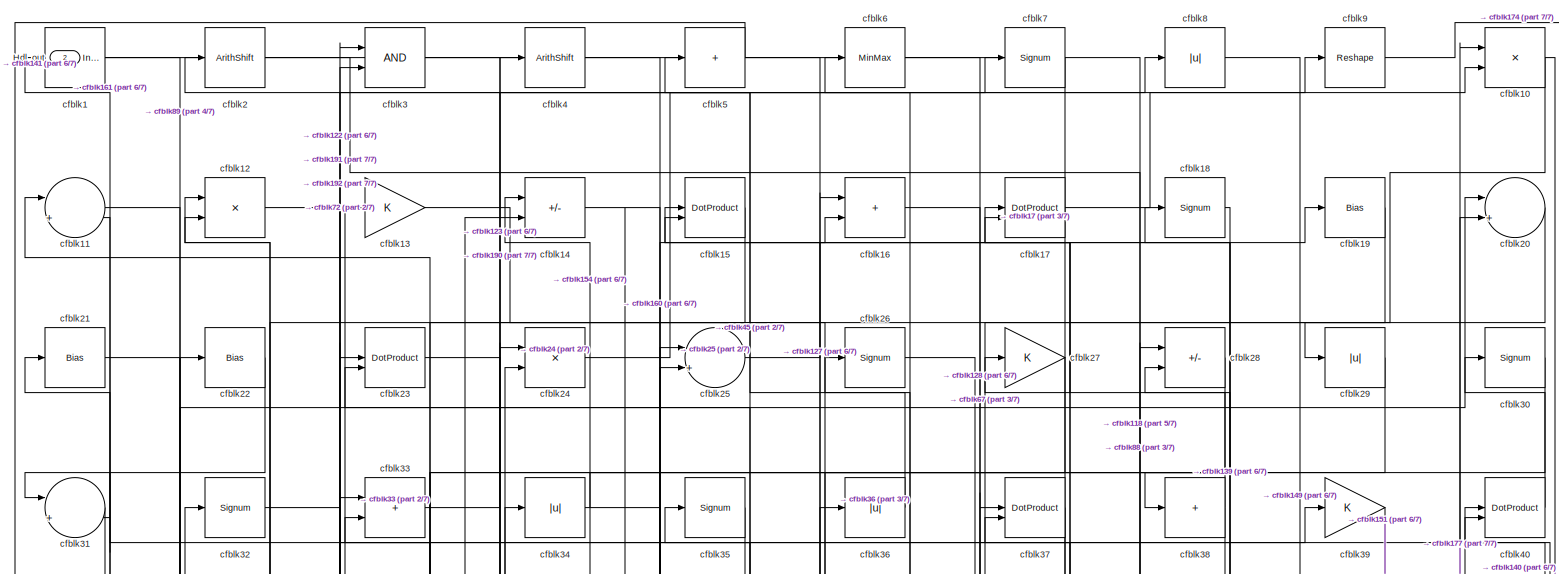
[diagram: root canvas - part 1/7, full width, top band]
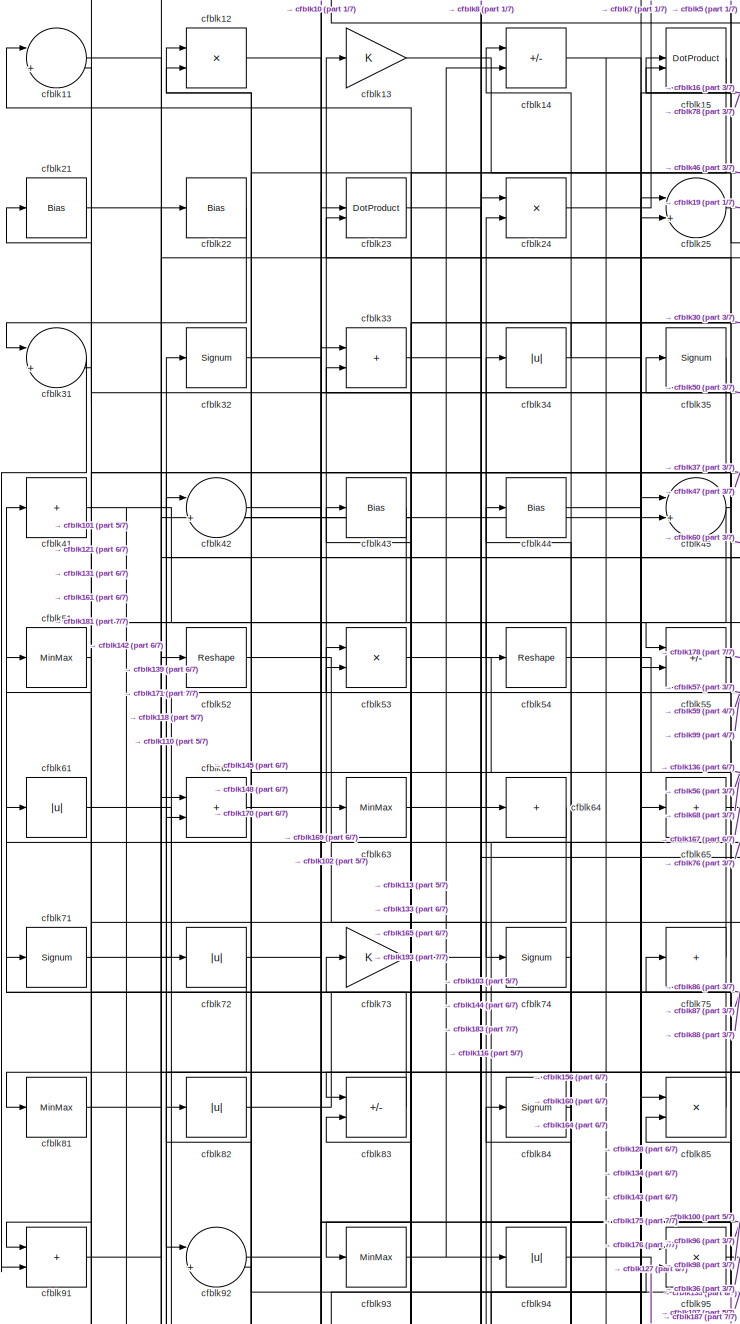
[diagram: root canvas - part 2/7, top left region]
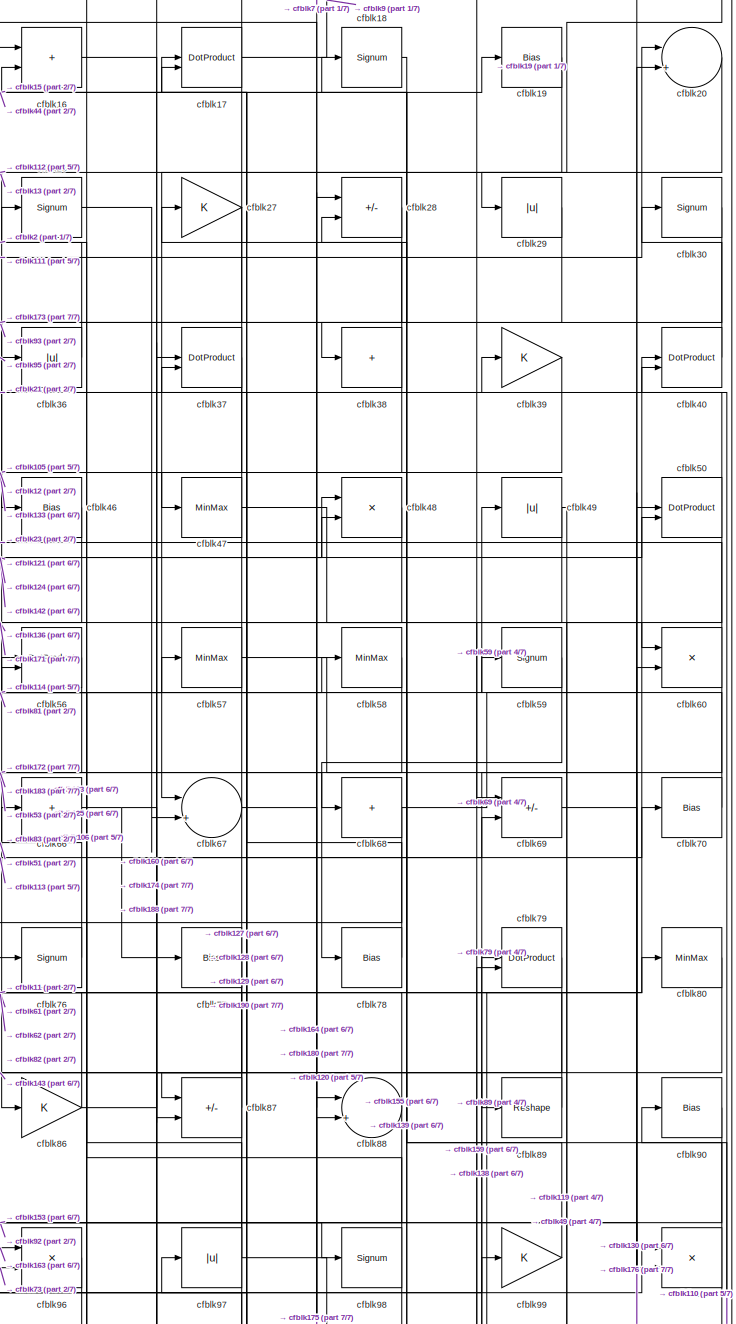
[diagram: root canvas - part 3/7, top right region]
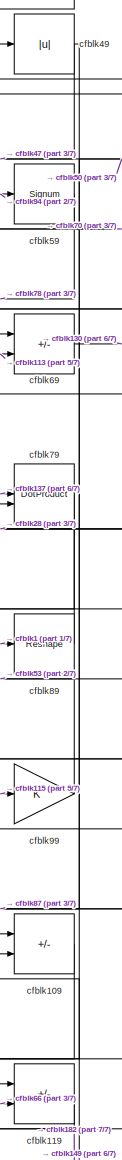
[diagram: root canvas - part 4/7, middle right region]
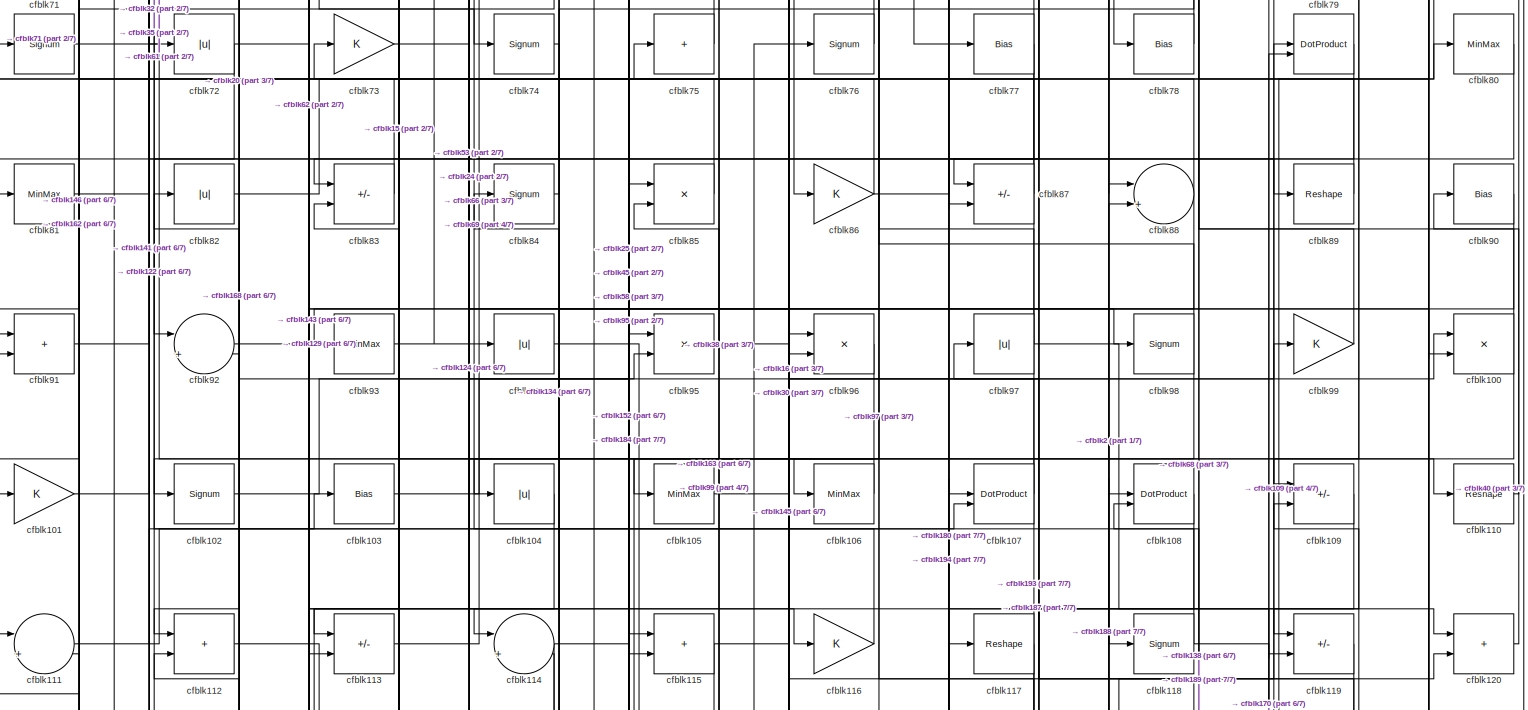
[diagram: root canvas - part 5/7, full width, middle band]
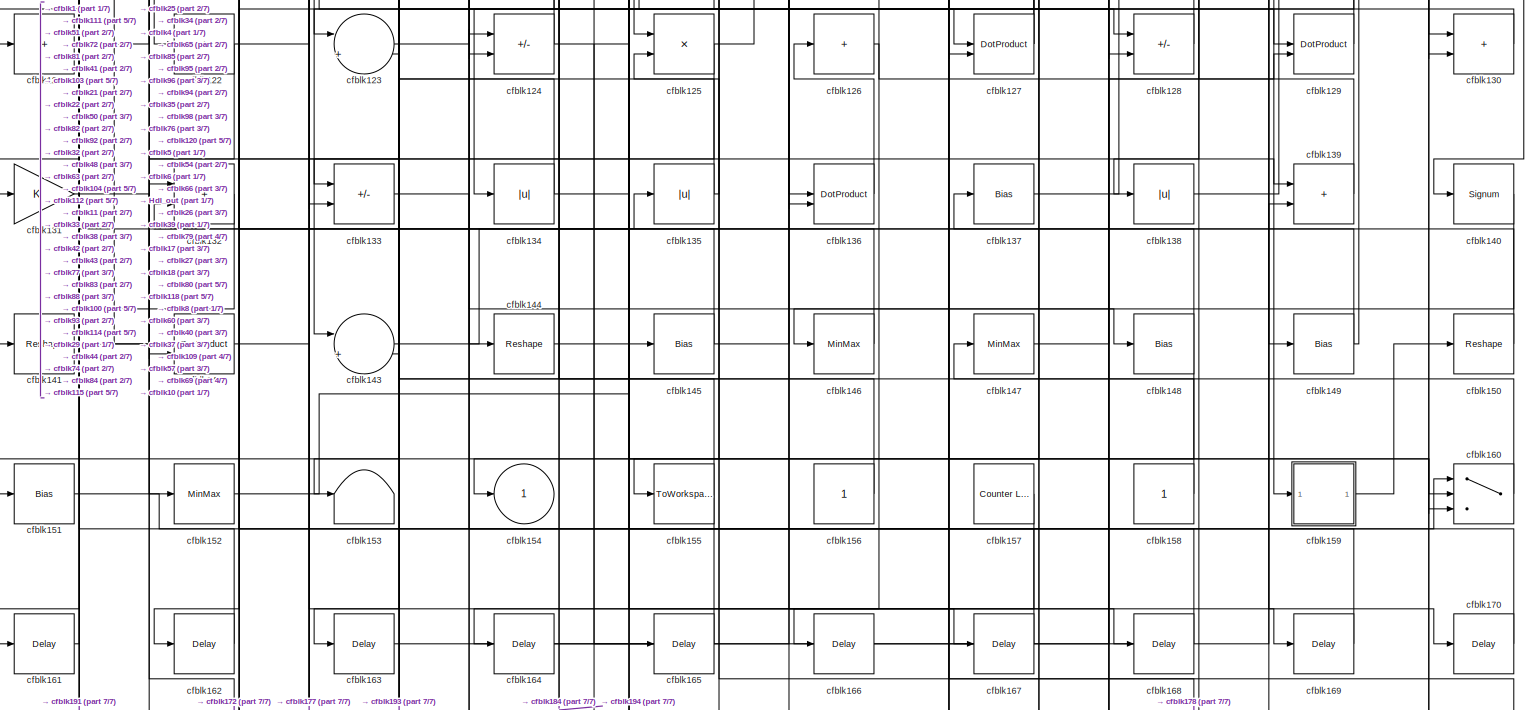
[diagram: root canvas - part 6/7, full width, bottom band]
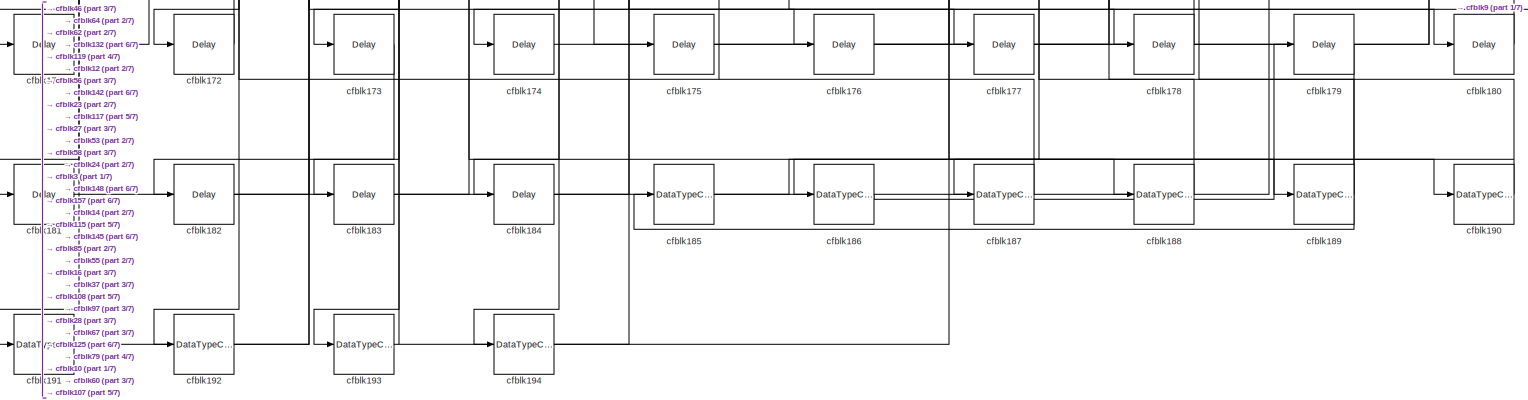
[diagram: root canvas - part 7/7, full width, bottom band]
MODEL slx_fb76f92d5b89
KIND model
CONFIG AbsTol = auto
CONFIG EnableMultiTasking = off
CONFIG FixedStep = auto
CONFIG MaxStep = auto
CONFIG MinStep = auto
CONFIG RelTol = 1e-3
CONFIG SampleTimeConstraint = Unconstrained
CONFIG SolverName = VariableStepAuto
CONFIG StartTime = 0.0
CONFIG StopTime = 10.0
BLOCK [Outport] Hdl_out
  OutDataTypeStr = uint8
  Port = 2
BLOCK [Reference] cfblk1  REF=simulink/Logic and Bit
Operations/Detect
Increase
  LibrarySourceBlock = hdlsllib/Logic and Bit\nOperations/Detect\nIncrease
  SourceBlock = simulink/Logic and Bit\nOperations/Detect\nIncrease
  SourceType = Detect Increase
BLOCK [Product] cfblk10
  Inputs = */
  OutDataTypeStr = uint8
  RndMeth = Zero
  SaturateOnIntegerOverflow = on
BLOCK [Product] cfblk100
  Inputs = */
  OutDataTypeStr = uint8
  RndMeth = Zero
  SaturateOnIntegerOverflow = on
BLOCK [Gain] cfblk101
  OutDataTypeStr = uint8
BLOCK [Signum] cfblk102
BLOCK [Bias] cfblk103
  Bias = 0.0
  SaturateOnIntegerOverflow = off
BLOCK [Abs] cfblk104
  OutDataTypeStr = uint8
  SaturateOnIntegerOverflow = off
BLOCK [MinMax] cfblk105
  OutDataTypeStr = uint8
BLOCK [MinMax] cfblk106
  OutDataTypeStr = uint8
BLOCK [DotProduct] cfblk107
  OutDataTypeStr = uint8
BLOCK [DotProduct] cfblk108
  OutDataTypeStr = uint8
BLOCK [Sum] cfblk109
  IconShape = rectangular
  Inputs = +-
  OutDataTypeStr = uint8
BLOCK [Sum] cfblk11
  Inputs = |++
  OutDataTypeStr = uint8
BLOCK [Reshape] cfblk110
BLOCK [Sum] cfblk111
  Inputs = |++
  OutDataTypeStr = uint8
BLOCK [Sum] cfblk112
  IconShape = rectangular
  OutDataTypeStr = uint8
BLOCK [Sum] cfblk113
  IconShape = rectangular
  Inputs = +-
  OutDataTypeStr = uint8
BLOCK [Sum] cfblk114
  Inputs = |++
  OutDataTypeStr = uint8
BLOCK [Sum] cfblk115
  IconShape = rectangular
  OutDataTypeStr = uint8
BLOCK [Gain] cfblk116
  OutDataTypeStr = uint8
BLOCK [Reshape] cfblk117
BLOCK [Signum] cfblk118
BLOCK [Sum] cfblk119
  IconShape = rectangular
  Inputs = +-
  OutDataTypeStr = uint8
BLOCK [Product] cfblk12
  Inputs = */
  OutDataTypeStr = uint8
  RndMeth = Zero
  SaturateOnIntegerOverflow = on
BLOCK [Sum] cfblk120
  IconShape = rectangular
  OutDataTypeStr = uint8
BLOCK [Sum] cfblk121
  IconShape = rectangular
  Inputs = +
  OutDataTypeStr = uint8
BLOCK [Sum] cfblk122
  IconShape = rectangular
  Inputs = +
  OutDataTypeStr = uint8
BLOCK [Sum] cfblk123
  Inputs = |++
  OutDataTypeStr = uint8
BLOCK [Sum] cfblk124
  IconShape = rectangular
  Inputs = +-
  OutDataTypeStr = uint8
BLOCK [Product] cfblk125
  Inputs = */
  OutDataTypeStr = uint8
  RndMeth = Zero
  SaturateOnIntegerOverflow = on
BLOCK [Sum] cfblk126
  IconShape = rectangular
  Inputs = +
  OutDataTypeStr = uint8
BLOCK [DotProduct] cfblk127
  OutDataTypeStr = uint8
BLOCK [Sum] cfblk128
  IconShape = rectangular
  Inputs = +-
  OutDataTypeStr = uint8
BLOCK [DotProduct] cfblk129
  OutDataTypeStr = uint8
BLOCK [Gain] cfblk13
  OutDataTypeStr = uint8
BLOCK [Sum] cfblk130
  IconShape = rectangular
  OutDataTypeStr = uint8
BLOCK [Gain] cfblk131
  OutDataTypeStr = uint8
BLOCK [Sum] cfblk132
  IconShape = rectangular
  OutDataTypeStr = uint8
BLOCK [Sum] cfblk133
  IconShape = rectangular
  Inputs = +-
  OutDataTypeStr = uint8
BLOCK [Abs] cfblk134
  OutDataTypeStr = uint8
  SaturateOnIntegerOverflow = off
BLOCK [Abs] cfblk135
  OutDataTypeStr = uint8
  SaturateOnIntegerOverflow = off
BLOCK [DotProduct] cfblk136
  OutDataTypeStr = uint8
BLOCK [Bias] cfblk137
  Bias = 0.0
  SaturateOnIntegerOverflow = off
BLOCK [Abs] cfblk138
  OutDataTypeStr = uint8
  SaturateOnIntegerOverflow = off
BLOCK [Sum] cfblk139
  IconShape = rectangular
  OutDataTypeStr = uint8
BLOCK [Sum] cfblk14
  IconShape = rectangular
  Inputs = +-
  OutDataTypeStr = uint8
BLOCK [Signum] cfblk140
BLOCK [Reshape] cfblk141
BLOCK [DotProduct] cfblk142
  OutDataTypeStr = uint8
BLOCK [Sum] cfblk143
  Inputs = |++
  OutDataTypeStr = uint8
BLOCK [Reshape] cfblk144
BLOCK [Bias] cfblk145
  Bias = 0.0
  SaturateOnIntegerOverflow = off
BLOCK [MinMax] cfblk146
  OutDataTypeStr = uint8
BLOCK [MinMax] cfblk147
  OutDataTypeStr = uint8
BLOCK [Bias] cfblk148
  Bias = 0.0
  SaturateOnIntegerOverflow = off
BLOCK [Bias] cfblk149
  Bias = 0.0
  SaturateOnIntegerOverflow = off
BLOCK [DotProduct] cfblk15
  OutDataTypeStr = uint8
BLOCK [Reshape] cfblk150
BLOCK [Bias] cfblk151
  Bias = 0.0
  SaturateOnIntegerOverflow = off
BLOCK [MinMax] cfblk152
  OutDataTypeStr = uint8
BLOCK [Terminator] cfblk153
BLOCK [Outport] cfblk154
  OutDataTypeStr = uint8
  VectorParamsAs1DForOutWhenUnconnected = off
BLOCK [ToWorkspace] cfblk155
  MaxDataPoints = inf
  SampleTime = -1
  SaveFormat = Timeseries
  VariableName = simout
BLOCK [Constant] cfblk156
  OutDataTypeStr = uint8
  SampleTime = -1
BLOCK [Reference] cfblk157  REF=hdlsllib/Sources/Counter
Limited
  SourceBlock = hdlsllib/Sources/Counter\nLimited
  SourceType = Counter Limited
BLOCK [Constant] cfblk158
  OutDataTypeStr = uint8
  SampleTime = -1
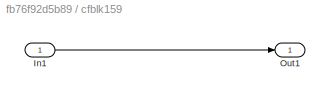
BLOCK [SubSystem] cfblk159
  LibrarySourceBlock = hdlsllib/Ports &\nSubsystems/Subsystem
BLOCK [Inport] cfblk159/In1
BLOCK [Outport] cfblk159/Out1
BLOCK [Sum] cfblk16
  IconShape = rectangular
  OutDataTypeStr = uint8
BLOCK [Switch] cfblk160
  InputSameDT = off
  OutDataTypeStr = uint8
  SaturateOnIntegerOverflow = off
BLOCK [Delay] cfblk161
  InputPortMap = u0
  SampleTime = 1
BLOCK [Delay] cfblk162
  InputPortMap = u0
  SampleTime = 1
BLOCK [Delay] cfblk163
  InputPortMap = u0
  SampleTime = 1
BLOCK [Delay] cfblk164
  InputPortMap = u0
  SampleTime = 1
BLOCK [Delay] cfblk165
  InputPortMap = u0
  SampleTime = 1
BLOCK [Delay] cfblk166
  InputPortMap = u0
  SampleTime = 1
BLOCK [Delay] cfblk167
  InputPortMap = u0
  SampleTime = 1
BLOCK [Delay] cfblk168
  InputPortMap = u0
  SampleTime = 1
BLOCK [Delay] cfblk169
  InputPortMap = u0
  SampleTime = 1
BLOCK [DotProduct] cfblk17
  OutDataTypeStr = uint8
BLOCK [Delay] cfblk170
  InputPortMap = u0
  SampleTime = 1
BLOCK [Delay] cfblk171
  InputPortMap = u0
  SampleTime = 1
BLOCK [Delay] cfblk172
  InputPortMap = u0
  SampleTime = 1
BLOCK [Delay] cfblk173
  InputPortMap = u0
  SampleTime = 1
BLOCK [Delay] cfblk174
  InputPortMap = u0
  SampleTime = 1
BLOCK [Delay] cfblk175
  InputPortMap = u0
  SampleTime = 1
BLOCK [Delay] cfblk176
  InputPortMap = u0
  SampleTime = 1
BLOCK [Delay] cfblk177
  InputPortMap = u0
  SampleTime = 1
BLOCK [Delay] cfblk178
  InputPortMap = u0
  SampleTime = 1
BLOCK [Delay] cfblk179
  InputPortMap = u0
  SampleTime = 1
BLOCK [Signum] cfblk18
BLOCK [Delay] cfblk180
  InputPortMap = u0
  SampleTime = 1
BLOCK [Delay] cfblk181
  InputPortMap = u0
  SampleTime = 1
BLOCK [Delay] cfblk182
  InputPortMap = u0
  SampleTime = 1
BLOCK [Delay] cfblk183
  InputPortMap = u0
  SampleTime = 1
BLOCK [Delay] cfblk184
  InputPortMap = u0
  SampleTime = 1
BLOCK [DataTypeConversion] cfblk185
  OutDataTypeStr = uint8
  RndMeth = Floor
  SaturateOnIntegerOverflow = off
BLOCK [DataTypeConversion] cfblk186
  OutDataTypeStr = uint8
  RndMeth = Floor
  SaturateOnIntegerOverflow = off
BLOCK [DataTypeConversion] cfblk187
  OutDataTypeStr = uint8
  RndMeth = Floor
  SaturateOnIntegerOverflow = off
BLOCK [DataTypeConversion] cfblk188
  OutDataTypeStr = uint8
  RndMeth = Floor
  SaturateOnIntegerOverflow = off
BLOCK [DataTypeConversion] cfblk189
  OutDataTypeStr = uint8
  RndMeth = Floor
  SaturateOnIntegerOverflow = off
BLOCK [Bias] cfblk19
  Bias = 0.0
  SaturateOnIntegerOverflow = off
BLOCK [DataTypeConversion] cfblk190
  OutDataTypeStr = uint8
  RndMeth = Floor
  SaturateOnIntegerOverflow = off
BLOCK [DataTypeConversion] cfblk191
  OutDataTypeStr = uint8
  RndMeth = Floor
  SaturateOnIntegerOverflow = off
BLOCK [DataTypeConversion] cfblk192
  OutDataTypeStr = uint8
  RndMeth = Floor
  SaturateOnIntegerOverflow = off
BLOCK [DataTypeConversion] cfblk193
  OutDataTypeStr = uint8
  RndMeth = Floor
  SaturateOnIntegerOverflow = off
BLOCK [DataTypeConversion] cfblk194
  OutDataTypeStr = uint8
  RndMeth = Floor
  SaturateOnIntegerOverflow = off
BLOCK [ArithShift] cfblk2
  BitShiftNumber = 8
  InputPortMap = u0
BLOCK [Sum] cfblk20
  Inputs = |++
  OutDataTypeStr = uint8
BLOCK [Bias] cfblk21
  Bias = 0.0
  SaturateOnIntegerOverflow = off
BLOCK [Bias] cfblk22
  Bias = 0.0
  SaturateOnIntegerOverflow = off
BLOCK [DotProduct] cfblk23
  OutDataTypeStr = uint8
BLOCK [Product] cfblk24
  Inputs = */
  OutDataTypeStr = uint8
  RndMeth = Zero
  SaturateOnIntegerOverflow = on
BLOCK [Sum] cfblk25
  Inputs = |++
  OutDataTypeStr = uint8
BLOCK [Signum] cfblk26
BLOCK [Gain] cfblk27
  OutDataTypeStr = uint8
BLOCK [Sum] cfblk28
  IconShape = rectangular
  Inputs = +-
  OutDataTypeStr = uint8
BLOCK [Abs] cfblk29
  OutDataTypeStr = uint8
  SaturateOnIntegerOverflow = off
BLOCK [Logic] cfblk3
  AllPortsSameDT = off
  OutDataTypeStr = boolean
BLOCK [Signum] cfblk30
BLOCK [Sum] cfblk31
  Inputs = |++
  OutDataTypeStr = uint8
BLOCK [Signum] cfblk32
BLOCK [Sum] cfblk33
  IconShape = rectangular
  OutDataTypeStr = uint8
BLOCK [Abs] cfblk34
  OutDataTypeStr = uint8
  SaturateOnIntegerOverflow = off
BLOCK [Signum] cfblk35
BLOCK [Abs] cfblk36
  OutDataTypeStr = uint8
  SaturateOnIntegerOverflow = off
BLOCK [DotProduct] cfblk37
  OutDataTypeStr = uint8
BLOCK [Sum] cfblk38
  IconShape = rectangular
  Inputs = +
  OutDataTypeStr = uint8
BLOCK [Gain] cfblk39
  OutDataTypeStr = uint8
BLOCK [ArithShift] cfblk4
  BitShiftNumber = 8
  InputPortMap = u0
BLOCK [DotProduct] cfblk40
  OutDataTypeStr = uint8
BLOCK [Sum] cfblk41
  IconShape = rectangular
  Inputs = +
  OutDataTypeStr = uint8
BLOCK [Sum] cfblk42
  Inputs = |++
  OutDataTypeStr = uint8
BLOCK [Bias] cfblk43
  Bias = 0.0
  SaturateOnIntegerOverflow = off
BLOCK [Bias] cfblk44
  Bias = 0.0
  SaturateOnIntegerOverflow = off
BLOCK [Sum] cfblk45
  Inputs = |++
  OutDataTypeStr = uint8
BLOCK [Bias] cfblk46
  Bias = 0.0
  SaturateOnIntegerOverflow = off
BLOCK [MinMax] cfblk47
  OutDataTypeStr = uint8
BLOCK [Product] cfblk48
  Inputs = */
  OutDataTypeStr = uint8
  RndMeth = Zero
  SaturateOnIntegerOverflow = on
BLOCK [Abs] cfblk49
  OutDataTypeStr = uint8
  SaturateOnIntegerOverflow = off
BLOCK [Sum] cfblk5
  IconShape = rectangular
  Inputs = +
  OutDataTypeStr = uint8
BLOCK [DotProduct] cfblk50
  OutDataTypeStr = uint8
BLOCK [MinMax] cfblk51
  OutDataTypeStr = uint8
BLOCK [Reshape] cfblk52
BLOCK [Product] cfblk53
  Inputs = */
  OutDataTypeStr = uint8
  RndMeth = Zero
  SaturateOnIntegerOverflow = on
BLOCK [Reshape] cfblk54
BLOCK [Sum] cfblk55
  IconShape = rectangular
  Inputs = +-
  OutDataTypeStr = uint8
BLOCK [DotProduct] cfblk56
  OutDataTypeStr = uint8
BLOCK [MinMax] cfblk57
  OutDataTypeStr = uint8
BLOCK [MinMax] cfblk58
  OutDataTypeStr = uint8
BLOCK [Signum] cfblk59
BLOCK [MinMax] cfblk6
  OutDataTypeStr = uint8
BLOCK [Product] cfblk60
  Inputs = */
  OutDataTypeStr = uint8
  RndMeth = Zero
  SaturateOnIntegerOverflow = on
BLOCK [Abs] cfblk61
  OutDataTypeStr = uint8
  SaturateOnIntegerOverflow = off
BLOCK [Sum] cfblk62
  IconShape = rectangular
  OutDataTypeStr = uint8
BLOCK [MinMax] cfblk63
  OutDataTypeStr = uint8
BLOCK [Sum] cfblk64
  IconShape = rectangular
  Inputs = +
  OutDataTypeStr = uint8
BLOCK [Sum] cfblk65
  IconShape = rectangular
  Inputs = +
  OutDataTypeStr = uint8
BLOCK [Sum] cfblk66
  IconShape = rectangular
  Inputs = +
  OutDataTypeStr = uint8
BLOCK [Sum] cfblk67
  Inputs = |++
  OutDataTypeStr = uint8
BLOCK [Sum] cfblk68
  IconShape = rectangular
  Inputs = +
  OutDataTypeStr = uint8
BLOCK [Sum] cfblk69
  IconShape = rectangular
  Inputs = +-
  OutDataTypeStr = uint8
BLOCK [Signum] cfblk7
BLOCK [Bias] cfblk70
  Bias = 0.0
  SaturateOnIntegerOverflow = off
BLOCK [Signum] cfblk71
BLOCK [Abs] cfblk72
  OutDataTypeStr = uint8
  SaturateOnIntegerOverflow = off
BLOCK [Gain] cfblk73
  OutDataTypeStr = uint8
BLOCK [Signum] cfblk74
BLOCK [Sum] cfblk75
  IconShape = rectangular
  Inputs = +
  OutDataTypeStr = uint8
BLOCK [Signum] cfblk76
BLOCK [Bias] cfblk77
  Bias = 0.0
  SaturateOnIntegerOverflow = off
BLOCK [Bias] cfblk78
  Bias = 0.0
  SaturateOnIntegerOverflow = off
BLOCK [DotProduct] cfblk79
  OutDataTypeStr = uint8
BLOCK [Abs] cfblk8
  OutDataTypeStr = uint8
  SaturateOnIntegerOverflow = off
BLOCK [MinMax] cfblk80
  OutDataTypeStr = uint8
BLOCK [MinMax] cfblk81
  OutDataTypeStr = uint8
BLOCK [Abs] cfblk82
  OutDataTypeStr = uint8
  SaturateOnIntegerOverflow = off
BLOCK [Sum] cfblk83
  IconShape = rectangular
  Inputs = +-
  OutDataTypeStr = uint8
BLOCK [Signum] cfblk84
BLOCK [Product] cfblk85
  Inputs = */
  OutDataTypeStr = uint8
  RndMeth = Zero
  SaturateOnIntegerOverflow = on
BLOCK [Gain] cfblk86
  OutDataTypeStr = uint8
BLOCK [Sum] cfblk87
  IconShape = rectangular
  Inputs = +-
  OutDataTypeStr = uint8
BLOCK [Sum] cfblk88
  Inputs = |++
  OutDataTypeStr = uint8
BLOCK [Reshape] cfblk89
BLOCK [Reshape] cfblk9
BLOCK [Bias] cfblk90
  Bias = 0.0
  SaturateOnIntegerOverflow = off
BLOCK [Sum] cfblk91
  IconShape = rectangular
  OutDataTypeStr = uint8
BLOCK [Sum] cfblk92
  Inputs = |++
  OutDataTypeStr = uint8
BLOCK [MinMax] cfblk93
  OutDataTypeStr = uint8
BLOCK [Abs] cfblk94
  OutDataTypeStr = uint8
  SaturateOnIntegerOverflow = off
BLOCK [Product] cfblk95
  Inputs = */
  OutDataTypeStr = uint8
  RndMeth = Zero
  SaturateOnIntegerOverflow = on
BLOCK [Product] cfblk96
  Inputs = */
  OutDataTypeStr = uint8
  RndMeth = Zero
  SaturateOnIntegerOverflow = on
BLOCK [Abs] cfblk97
  OutDataTypeStr = uint8
  SaturateOnIntegerOverflow = off
BLOCK [Signum] cfblk98
BLOCK [Gain] cfblk99
  OutDataTypeStr = uint8
NET cfblk100:1 -> cfblk124:2, cfblk15:2
LINE cfblk101:1 -> cfblk45:2
LINE cfblk102:1 -> cfblk45:1
NET cfblk103:1 -> cfblk25:1, cfblk80:1, cfblk95:2
LINE cfblk104:1 -> cfblk143:1
LINE cfblk105:1 -> cfblk100:1
LINE cfblk106:1 -> cfblk102:1
LINE cfblk107:1 -> cfblk71:1
LINE cfblk108:1 -> cfblk187:1
LINE cfblk109:1 -> cfblk113:2
NET cfblk10:1 -> cfblk140:1, cfblk29:1
LINE cfblk110:1 -> cfblk40:1
NET cfblk111:1 -> cfblk16:1, cfblk30:1
LINE cfblk112:1 -> cfblk129:1
NET cfblk113:1 -> cfblk66:1, cfblk69:2
NET cfblk114:1 -> cfblk134:1, cfblk58:1
NET cfblk115:1 -> cfblk107:2, cfblk163:1, cfblk99:1
LINE cfblk116:1 -> cfblk24:2
LINE cfblk117:1 -> cfblk193:1
NET cfblk118:1 -> cfblk170:1, cfblk32:1
LINE cfblk119:1 -> cfblk182:1
LINE cfblk11:1 -> cfblk72:1
LINE cfblk120:1 -> cfblk90:1
NET cfblk121:1 -> cfblk22:1, cfblk50:2
NET cfblk122:1 -> cfblk142:2, cfblk39:1
LINE cfblk123:1 -> cfblk4:1
NET cfblk124:1 -> cfblk114:2, cfblk165:1, cfblk48:1
NET cfblk125:1 -> cfblk162:1, cfblk76:1
LINE cfblk126:1 -> cfblk166:1
NET cfblk127:1 -> Hdl_out:1, cfblk26:1
NET cfblk128:1 -> cfblk17:2, cfblk27:1
LINE cfblk129:1 -> cfblk37:2
LINE cfblk12:1 -> cfblk47:1
LINE cfblk130:1 -> cfblk123:1
LINE cfblk131:1 -> cfblk152:1
LINE cfblk132:1 -> cfblk191:1
NET cfblk133:1 -> cfblk148:1, cfblk83:2
NET cfblk134:1 -> cfblk168:1, cfblk42:2, cfblk65:1
NET cfblk135:1 -> cfblk33:2, cfblk35:1
LINE cfblk136:1 -> cfblk126:1
LINE cfblk137:1 -> cfblk79:1
LINE cfblk138:1 -> cfblk40:2
NET cfblk139:1 -> cfblk18:1, cfblk6:1
LINE cfblk13:1 -> cfblk46:1
LINE cfblk140:1 -> cfblk146:1
LINE cfblk141:1 -> cfblk103:1
NET cfblk142:1 -> cfblk177:1, cfblk48:2, cfblk63:1
LINE cfblk143:1 -> cfblk95:1
LINE cfblk144:1 -> cfblk25:2
NET cfblk145:1 -> cfblk120:2, cfblk82:1
NET cfblk146:1 -> cfblk111:2, cfblk135:1
LINE cfblk147:1 -> cfblk129:2
NET cfblk148:1 -> cfblk184:1, cfblk92:2
NET cfblk149:1 -> cfblk109:2, cfblk137:1
NET cfblk14:1 -> cfblk175:1, cfblk176:1
LINE cfblk150:1 -> cfblk132:2
LINE cfblk151:1 -> cfblk160:1
LINE cfblk152:1 -> cfblk115:1
NET cfblk156:1 -> cfblk43:1, cfblk44:1
LINE cfblk157:1 -> cfblk194:1
LINE cfblk158:1 -> cfblk147:1
LINE cfblk159/In1:1 -> cfblk159/Out1:1
LINE cfblk159:1 -> cfblk150:1
LINE cfblk15:1 -> cfblk113:1
LINE cfblk160:1 -> cfblk84:1
LINE cfblk161:1 -> cfblk1:1
LINE cfblk162:1 -> cfblk111:1
LINE cfblk163:1 -> cfblk96:1
LINE cfblk164:1 -> cfblk88:2
LINE cfblk165:1 -> cfblk11:1
LINE cfblk166:1 -> cfblk139:2
LINE cfblk167:1 -> cfblk85:1
LINE cfblk168:1 -> cfblk112:2
LINE cfblk169:1 -> cfblk124:1
LINE cfblk16:1 -> cfblk188:1
LINE cfblk170:1 -> cfblk42:1
LINE cfblk171:1 -> cfblk62:1
LINE cfblk172:1 -> cfblk132:1
LINE cfblk173:1 -> cfblk192:1
LINE cfblk174:1 -> cfblk37:1
LINE cfblk175:1 -> cfblk28:1
LINE cfblk176:1 -> cfblk60:2
LINE cfblk177:1 -> cfblk10:1
LINE cfblk178:1 -> cfblk125:2
LINE cfblk179:1 -> cfblk185:1
LINE cfblk17:1 -> cfblk9:1
LINE cfblk180:1 -> cfblk107:1
LINE cfblk181:1 -> cfblk23:1
LINE cfblk182:1 -> cfblk79:2
LINE cfblk183:1 -> cfblk24:1
LINE cfblk184:1 -> cfblk115:2
LINE cfblk185:1 -> cfblk189:1
LINE cfblk186:1 -> cfblk179:1
NET cfblk187:1 -> cfblk12:2, cfblk85:2
LINE cfblk188:1 -> cfblk108:1
LINE cfblk189:1 -> cfblk108:2
LINE cfblk18:1 -> cfblk38:1
NET cfblk190:1 -> cfblk186:1, cfblk97:1
LINE cfblk191:1 -> cfblk3:1
LINE cfblk192:1 -> cfblk3:2
NET cfblk193:1 -> cfblk145:1, cfblk53:2
LINE cfblk194:1 -> cfblk117:1
LINE cfblk19:1 -> cfblk67:1
LINE cfblk1:1 -> cfblk89:1
LINE cfblk20:1 -> cfblk112:1
LINE cfblk21:1 -> cfblk139:1
NET cfblk22:1 -> cfblk31:1, cfblk31:2
LINE cfblk23:1 -> cfblk94:1
LINE cfblk24:1 -> cfblk7:1
LINE cfblk25:1 -> cfblk19:1
LINE cfblk26:1 -> cfblk67:2
LINE cfblk27:1 -> cfblk173:1
LINE cfblk28:1 -> cfblk86:1
LINE cfblk29:1 -> cfblk154:1
LINE cfblk2:1 -> cfblk118:1
LINE cfblk30:1 -> cfblk93:1
LINE cfblk31:1 -> cfblk91:2
LINE cfblk32:1 -> cfblk169:1
LINE cfblk33:1 -> cfblk8:1
NET cfblk34:1 -> cfblk128:1, cfblk14:1
NET cfblk35:1 -> cfblk101:1, cfblk92:1
LINE cfblk36:1 -> cfblk2:1
LINE cfblk37:1 -> cfblk81:1
NET cfblk38:1 -> cfblk105:1, cfblk133:1, cfblk17:1
LINE cfblk39:1 -> cfblk151:1
LINE cfblk3:1 -> cfblk190:1
LINE cfblk40:1 -> cfblk20:1
NET cfblk41:1 -> cfblk142:1, cfblk55:1
NET cfblk42:1 -> cfblk12:1, cfblk54:1
LINE cfblk43:1 -> cfblk91:1
LINE cfblk44:1 -> cfblk16:2
NET cfblk45:1 -> cfblk55:2, cfblk5:1
LINE cfblk46:1 -> cfblk171:1
NET cfblk47:1 -> cfblk60:1, cfblk69:1
LINE cfblk48:1 -> cfblk136:2
NET cfblk49:1 -> cfblk109:1, cfblk87:1
LINE cfblk4:1 -> cfblk160:3
NET cfblk50:1 -> cfblk119:1, cfblk21:1
LINE cfblk51:1 -> cfblk131:1
LINE cfblk52:1 -> cfblk74:1
NET cfblk53:1 -> cfblk100:2, cfblk68:1
LINE cfblk54:1 -> cfblk136:1
LINE cfblk55:1 -> cfblk178:1
NET cfblk56:1 -> cfblk172:1, cfblk83:1
LINE cfblk57:1 -> cfblk130:2
LINE cfblk58:1 -> cfblk183:1
LINE cfblk59:1 -> cfblk78:1
NET cfblk5:1 -> cfblk127:2, cfblk141:1
NET cfblk60:1 -> cfblk159:1, cfblk23:2
LINE cfblk61:1 -> cfblk110:1
LINE cfblk62:1 -> cfblk116:1
LINE cfblk63:1 -> cfblk34:1
LINE cfblk64:1 -> cfblk181:1
LINE cfblk65:1 -> cfblk167:1
NET cfblk66:1 -> cfblk119:2, cfblk160:2, cfblk77:1
LINE cfblk67:1 -> cfblk180:1
NET cfblk68:1 -> cfblk106:1, cfblk114:1, cfblk20:2
LINE cfblk69:1 -> cfblk130:1
LINE cfblk6:1 -> cfblk128:2
LINE cfblk70:1 -> cfblk49:1
LINE cfblk71:1 -> cfblk33:1
NET cfblk72:1 -> cfblk10:2, cfblk161:1
LINE cfblk73:1 -> cfblk96:2
LINE cfblk74:1 -> cfblk164:1
LINE cfblk75:1 -> cfblk13:1
LINE cfblk76:1 -> cfblk51:1
LINE cfblk77:1 -> cfblk143:2
LINE cfblk78:1 -> cfblk15:1
LINE cfblk79:1 -> cfblk87:2
LINE cfblk7:1 -> cfblk88:1
NET cfblk80:1 -> cfblk122:1, cfblk138:1
NET cfblk81:1 -> cfblk121:1, cfblk57:1
LINE cfblk82:1 -> cfblk50:1
LINE cfblk83:1 -> cfblk41:1
LINE cfblk84:1 -> cfblk64:1
LINE cfblk85:1 -> cfblk73:1
NET cfblk86:1 -> cfblk62:2, cfblk70:1
LINE cfblk87:1 -> cfblk61:1
NET cfblk88:1 -> cfblk11:2, cfblk133:2, cfblk153:1
LINE cfblk89:1 -> cfblk28:2
LINE cfblk8:1 -> cfblk149:1
LINE cfblk90:1 -> cfblk104:1
LINE cfblk91:1 -> cfblk52:1
LINE cfblk92:1 -> cfblk98:1
NET cfblk93:1 -> cfblk144:1, cfblk14:2
NET cfblk94:1 -> cfblk127:1, cfblk59:1
NET cfblk95:1 -> cfblk36:1, cfblk75:1
NET cfblk96:1 -> cfblk123:2, cfblk125:1
NET cfblk97:1 -> cfblk120:1, cfblk56:1
NET cfblk98:1 -> cfblk155:1, cfblk56:2
LINE cfblk99:1 -> cfblk53:1
LINE cfblk9:1 -> cfblk174:1
note: NET lines group one-source signal fan-out (src -> all destinations, sorted); 1:1 wires keep LINE
